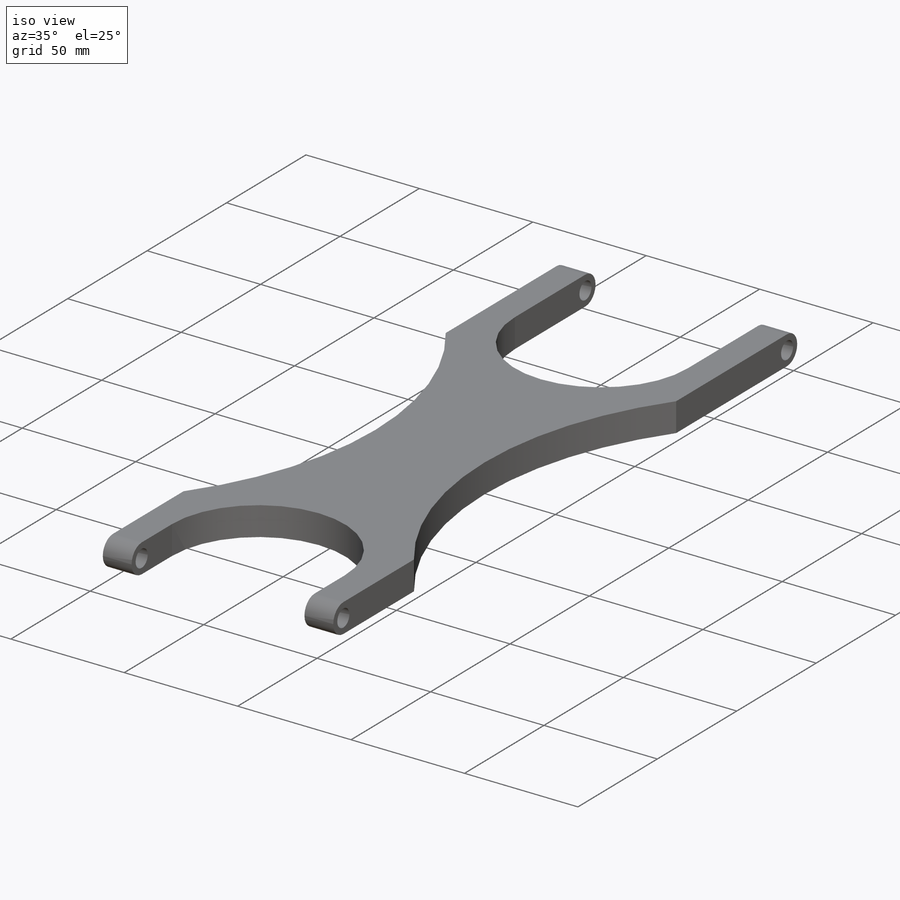
[diagram: iso view]
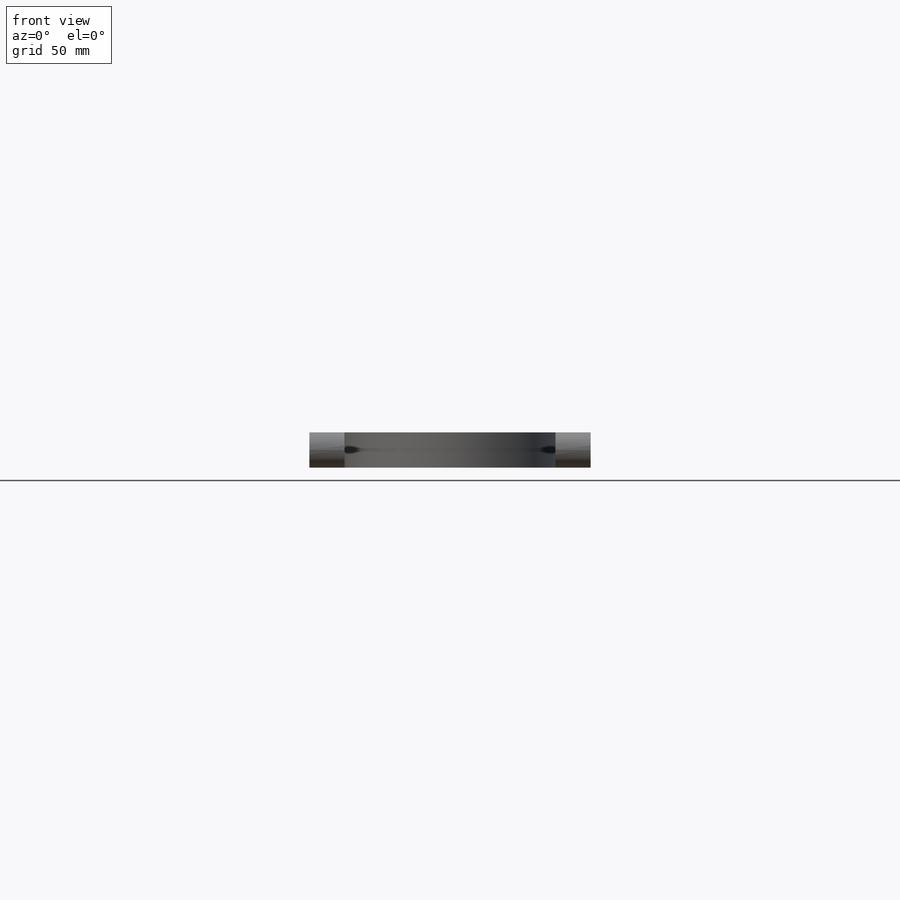
[diagram: front view]
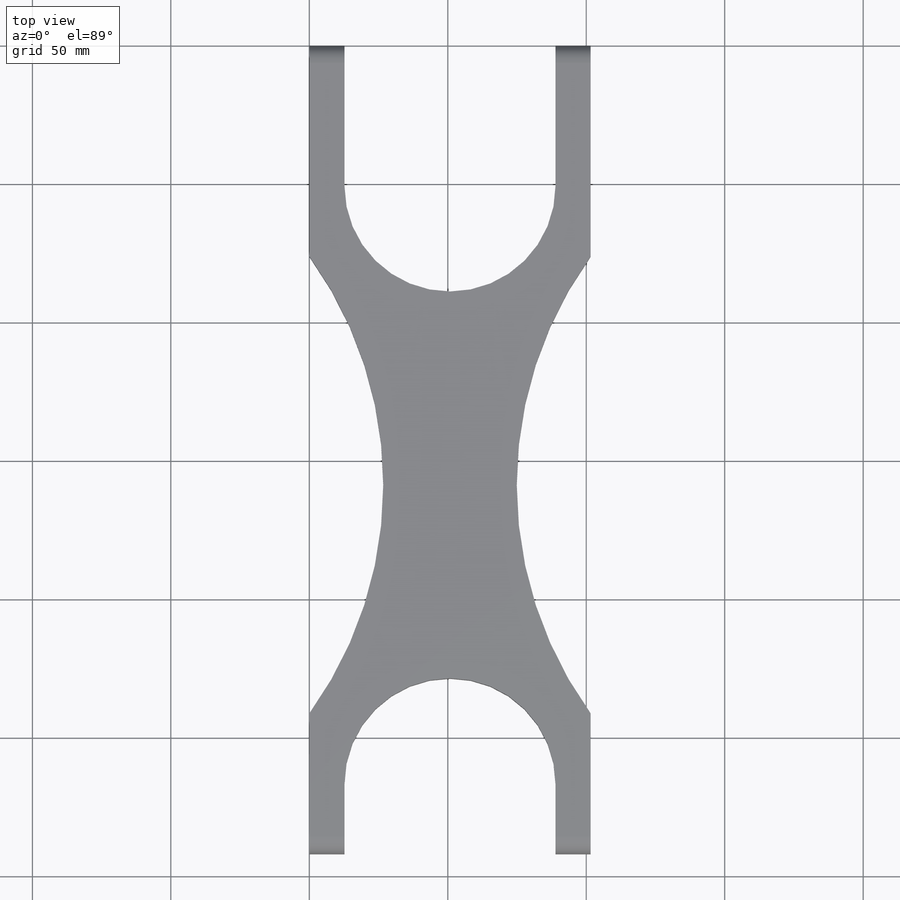
[diagram: top view]
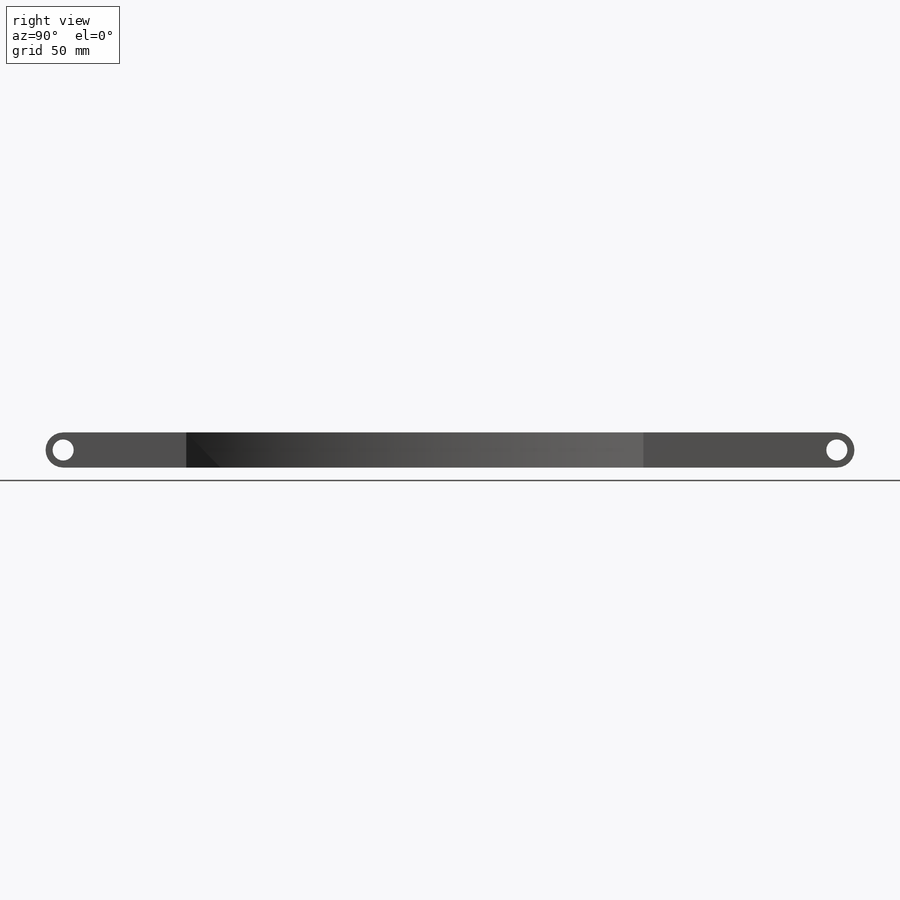
[diagram: right view]
SOLIDWORKS PART (.sldprt)
format: sldprt  version: not decoded by parser v0  size: 369,152 bytes
history: native  units: mm
features: sketch x3, cut_extrude x2, material x1, extrude x1, fillet x1 (+11 scaffold rows collapsed)
feature tree (19):
  scaffold x11  (default folders/planes/origin — collapsed)
  material  "Material <not specified>"
  sketch  "Sketch1"  dims[c1.D8=~136.255406mm c1.D1=~28.925516mm c2.D1=~0.011671deg c3.D1=292.1mm c3.D2=12.7mm c3.D3=~52.919763mm c4.D3=~0.011671deg c5.D3=~52.465404mm c6.D3=~0.011671deg c7.D3=76.2mm c7.D4=50.8mm c7.D5=25.4mm c7.D6=76.2mm c7.D7=50.8mm c7.D8=330.2mm]
  extrude  "Boss-Extrude1"  Depth=12.7mm
  fillet  "Fillet1"  Radius=6.35mm
  sketch  "Sketch2"  dims[D1=~4.978665mm]
  cut_extrude  "Cut-Extrude1"  [1 undecoded]
  sketch  "Sketch3"  dims[D1=~3.860821mm]
  cut_extrude  "Cut-Extrude2"  [1 undecoded]
decode coverage: 5 of 7 modeling features carry decoded parameters
note: ~ marks probable driven/reference dimensions
note: 2 parameter values undecoded
note: suppression state not decoded; provenance and decode notes live in map.json
